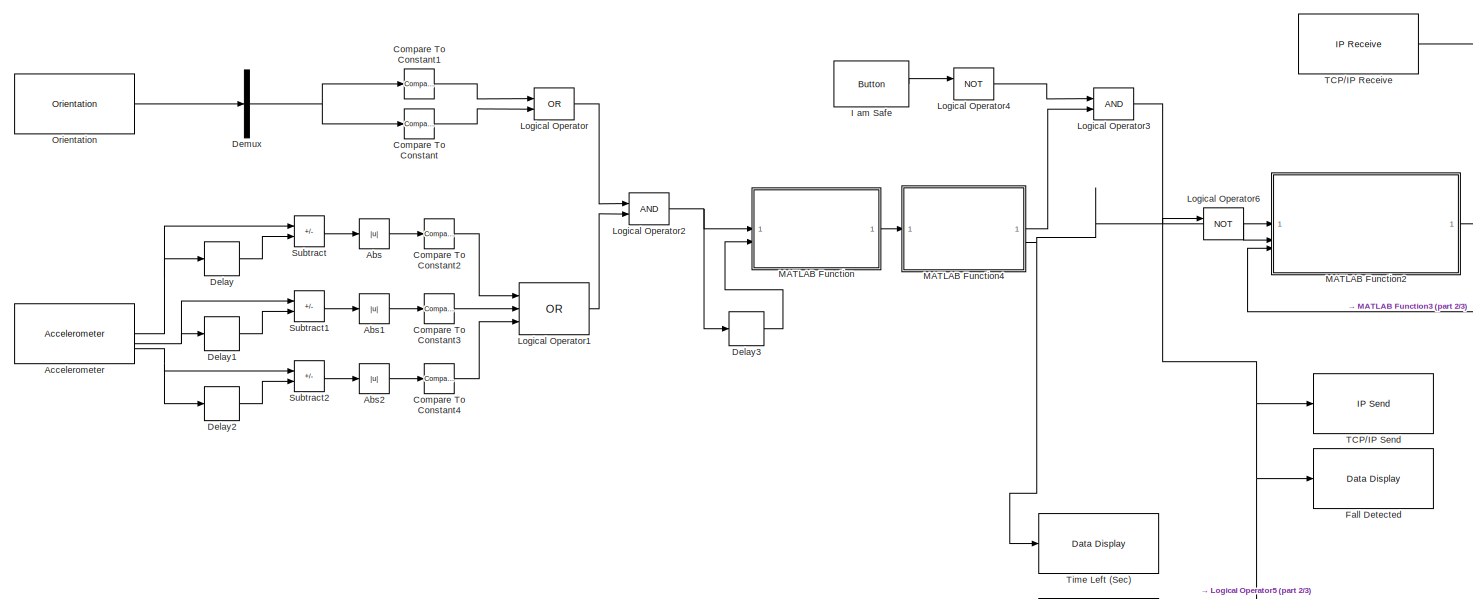
[diagram: root canvas - part 1/3, top left region]
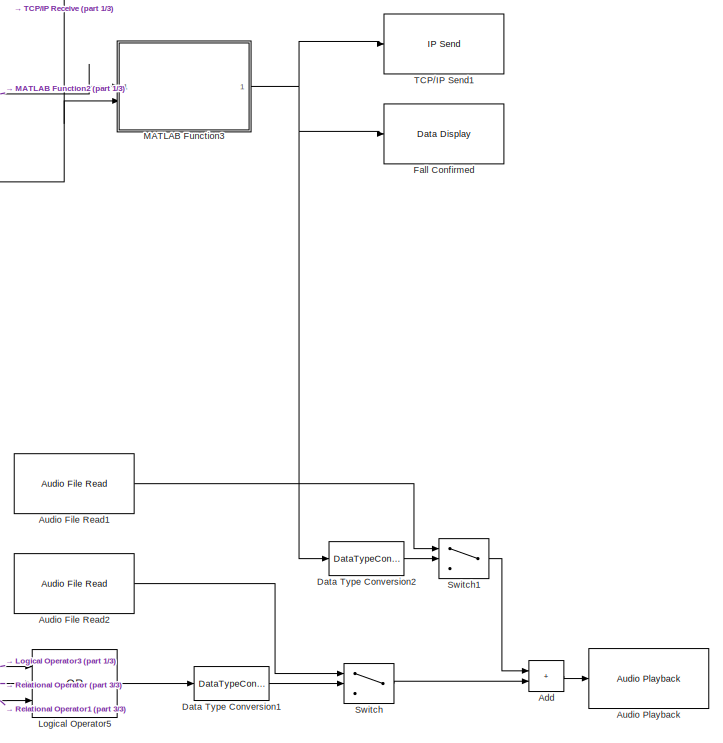
[diagram: root canvas - part 2/3, middle right region]
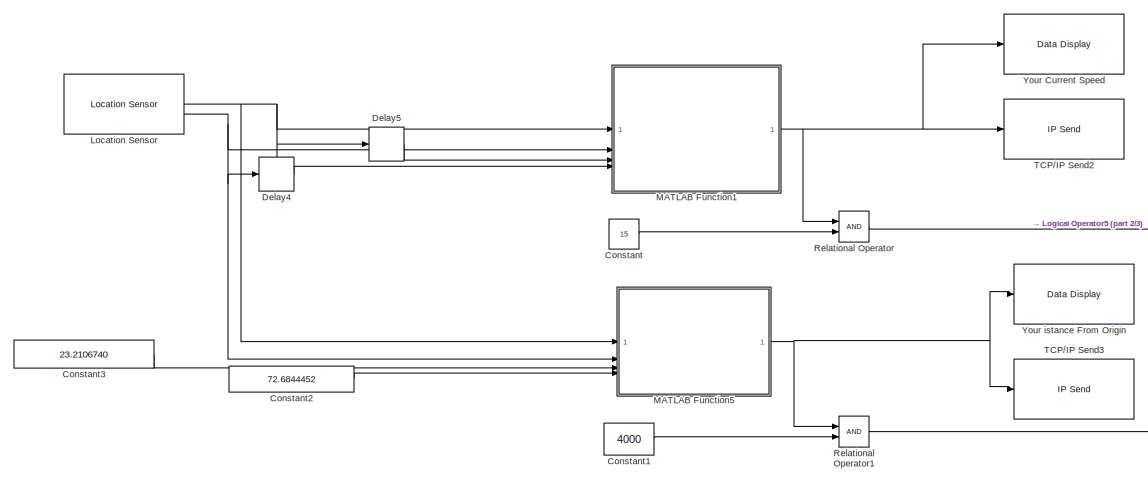
[diagram: root canvas - part 3/3, bottom left region]
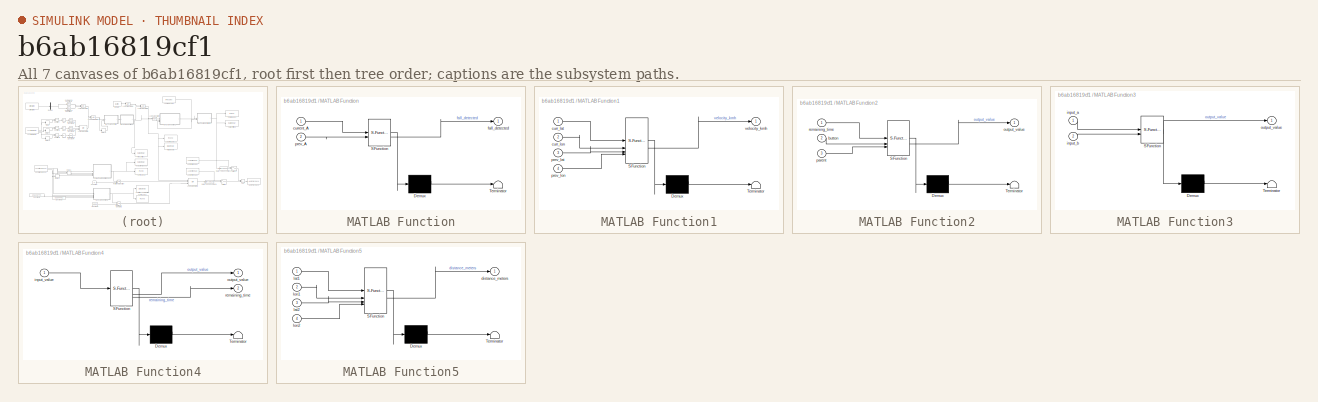
[diagram: thumbnail index - all 7 canvases of the model, root first then tree order]
MODEL slx_b6ab16819cf1
KIND model
CONFIG AbsTol = auto
CONFIG EnableMultiTasking = off
CONFIG FixedStep = auto
CONFIG MaxStep = auto
CONFIG MinStep = auto
CONFIG RelTol = 1e-3
CONFIG SampleTimeConstraint = Unconstrained
CONFIG SolverName = FixedStepAuto
CONFIG StartTime = 0.0
CONFIG StopTime = inf
BLOCK [Abs] Abs
  SaturateOnIntegerOverflow = off
BLOCK [Abs] Abs1
  SaturateOnIntegerOverflow = off
BLOCK [Abs] Abs2
  SaturateOnIntegerOverflow = off
BLOCK [Reference] Accelerometer  REF=androidsensorlib/Accelerometer
  SourceBlock = androidsensorlib/Accelerometer
  SourceType = codertarget.internal.androidAccelerometer
BLOCK [Sum] Add
  IconShape = rectangular
BLOCK [Reference] Audio File Read1  REF=androidaudiovideolib/Audio File Read
  SourceBlock = androidaudiovideolib/Audio File Read
  SourceType = codertarget.internal.androidAudioFileRead
BLOCK [Reference] Audio File Read2  REF=androidaudiovideolib/Audio File Read
  SourceBlock = androidaudiovideolib/Audio File Read
  SourceType = codertarget.internal.androidAudioFileRead
BLOCK [Reference] Audio Playback  REF=androidaudiovideolib/Audio Playback
  SourceBlock = androidaudiovideolib/Audio Playback
  SourceType = codertarget.internal.androidAudioPlayback
BLOCK [Reference] Compare To Constant  REF=simulink/Logic and Bit
Operations/Compare
To Constant
  SourceBlock = simulink/Logic and Bit\nOperations/Compare\nTo Constant
  SourceType = Compare To Constant
BLOCK [Reference] Compare To Constant1  REF=simulink/Logic and Bit
Operations/Compare
To Constant
  SourceBlock = simulink/Logic and Bit\nOperations/Compare\nTo Constant
  SourceType = Compare To Constant
BLOCK [Reference] Compare To Constant2  REF=simulink/Logic and Bit
Operations/Compare
To Constant
  SourceBlock = simulink/Logic and Bit\nOperations/Compare\nTo Constant
  SourceType = Compare To Constant
BLOCK [Reference] Compare To Constant3  REF=simulink/Logic and Bit
Operations/Compare
To Constant
  SourceBlock = simulink/Logic and Bit\nOperations/Compare\nTo Constant
  SourceType = Compare To Constant
BLOCK [Reference] Compare To Constant4  REF=simulink/Logic and Bit
Operations/Compare
To Constant
  SourceBlock = simulink/Logic and Bit\nOperations/Compare\nTo Constant
  SourceType = Compare To Constant
BLOCK [Constant] Constant
  Value = 15
BLOCK [Constant] Constant1
  Value = 4000
BLOCK [Constant] Constant2
  Value = 72.6844452
BLOCK [Constant] Constant3
  Value = 23.2106740
BLOCK [DataTypeConversion] Data Type Conversion1
  OutDataTypeStr = double
  RndMeth = Floor
  SaturateOnIntegerOverflow = off
BLOCK [DataTypeConversion] Data Type Conversion2
  OutDataTypeStr = double
  RndMeth = Floor
  SaturateOnIntegerOverflow = off
BLOCK [Delay] Delay
  DelayLength = 1
  InitialCondition = 0
  InputPortMap = u0
BLOCK [Delay] Delay1
  DelayLength = 1
  InitialCondition = 0
  InputPortMap = u0
BLOCK [Delay] Delay2
  DelayLength = 1
  InitialCondition = 0
  InputPortMap = u0
BLOCK [Delay] Delay3
  DelayLength = 1
  InitialCondition = 0
  InputPortMap = u0
BLOCK [Delay] Delay4
  DelayLength = 1
  InitialCondition = 0
  InputPortMap = u0
BLOCK [Delay] Delay5
  DelayLength = 1
  InitialCondition = 0
  InputPortMap = u0
BLOCK [Demux] Demux
  Outputs = 3
BLOCK [Reference] Fall Confirmed  REF=androiduilib/Data Display
  SourceBlock = androiduilib/Data Display
  SourceType = codertarget.internal.androidDataDisplay
BLOCK [Reference] Fall Detected  REF=androiduilib/Data Display
  SourceBlock = androiduilib/Data Display
  SourceType = codertarget.internal.androidDataDisplay
BLOCK [Reference] I am Safe  REF=androiduilib/Button
  SourceBlock = androiduilib/Button
  SourceType = codertarget.internal.androidButton
BLOCK [Reference] Location Sensor  REF=androidsensorlib/Location Sensor
  SourceBlock = androidsensorlib/Location Sensor
  SourceType = codertarget.internal.androidLocation
BLOCK [Logic] Logical Operator
  AllPortsSameDT = off
  IconShape = distinctive
  Operator = OR
  OutDataTypeStr = boolean
BLOCK [Logic] Logical Operator1
  AllPortsSameDT = off
  IconShape = distinctive
  Inputs = 3
  Operator = OR
  OutDataTypeStr = boolean
BLOCK [Logic] Logical Operator2
  AllPortsSameDT = off
  IconShape = distinctive
  OutDataTypeStr = boolean
BLOCK [Logic] Logical Operator3
  AllPortsSameDT = off
  IconShape = distinctive
  OutDataTypeStr = boolean
BLOCK [Logic] Logical Operator4
  AllPortsSameDT = off
  IconShape = distinctive
  Operator = NOT
  OutDataTypeStr = boolean
BLOCK [Logic] Logical Operator5
  AllPortsSameDT = off
  IconShape = distinctive
  Inputs = 3
  Operator = OR
  OutDataTypeStr = boolean
BLOCK [Logic] Logical Operator6
  AllPortsSameDT = off
  IconShape = distinctive
  Operator = NOT
  OutDataTypeStr = boolean
BLOCK [SubSystem] MATLAB Function
  ErrorFcn = Stateflow.Translate.translate
  PermitHierarchicalResolution = ExplicitOnly
  SFBlockType = MATLAB Function
  TreatAsAtomicUnit = on
BLOCK [Demux] MATLAB Function/ Demux 
  Outputs = 1
BLOCK [S-Function] MATLAB Function/ SFunction 
  EnableBusSupport = on
  FunctionName = sf_sfun
  PortCounts = [2 2]
  SFcnIsStateOwnerBlock = off
  SFunctionDeploymentMode = off
  Tag = Stateflow S-Function 2
BLOCK [Terminator] MATLAB Function/ Terminator 
BLOCK [Inport] MATLAB Function/current_A
BLOCK [Outport] MATLAB Function/fall_detected
BLOCK [Inport] MATLAB Function/prev_A
  Port = 2
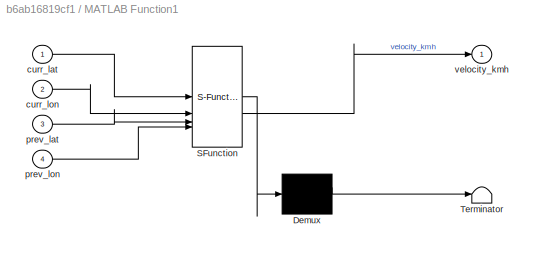
BLOCK [SubSystem] MATLAB Function1
  ErrorFcn = Stateflow.Translate.translate
  PermitHierarchicalResolution = ExplicitOnly
  SFBlockType = MATLAB Function
  TreatAsAtomicUnit = on
BLOCK [Demux] MATLAB Function1/ Demux 
  Outputs = 1
BLOCK [S-Function] MATLAB Function1/ SFunction 
  EnableBusSupport = on
  FunctionName = sf_sfun
  PortCounts = [4 2]
  SFcnIsStateOwnerBlock = off
  SFunctionDeploymentMode = off
  Tag = Stateflow S-Function 1
BLOCK [Terminator] MATLAB Function1/ Terminator 
BLOCK [Inport] MATLAB Function1/curr_lat
BLOCK [Inport] MATLAB Function1/curr_lon
  Port = 2
BLOCK [Inport] MATLAB Function1/prev_lat
  Port = 3
BLOCK [Inport] MATLAB Function1/prev_lon
  Port = 4
BLOCK [Outport] MATLAB Function1/velocity_kmh
BLOCK [SubSystem] MATLAB Function2
  ErrorFcn = Stateflow.Translate.translate
  PermitHierarchicalResolution = ExplicitOnly
  SFBlockType = MATLAB Function
  TreatAsAtomicUnit = on
BLOCK [Demux] MATLAB Function2/ Demux 
  Outputs = 1
BLOCK [S-Function] MATLAB Function2/ SFunction 
  EnableBusSupport = on
  FunctionName = sf_sfun
  PortCounts = [3 2]
  SFcnIsStateOwnerBlock = off
  SFunctionDeploymentMode = off
  Tag = Stateflow S-Function 3
BLOCK [Terminator] MATLAB Function2/ Terminator 
BLOCK [Inport] MATLAB Function2/button
  Port = 2
BLOCK [Outport] MATLAB Function2/output_value
BLOCK [Inport] MATLAB Function2/parent
  Port = 3
BLOCK [Inport] MATLAB Function2/remaining_time
BLOCK [SubSystem] MATLAB Function3
  ErrorFcn = Stateflow.Translate.translate
  PermitHierarchicalResolution = ExplicitOnly
  SFBlockType = MATLAB Function
  TreatAsAtomicUnit = on
BLOCK [Demux] MATLAB Function3/ Demux 
  Outputs = 1
BLOCK [S-Function] MATLAB Function3/ SFunction 
  EnableBusSupport = on
  FunctionName = sf_sfun
  PortCounts = [2 2]
  SFcnIsStateOwnerBlock = off
  SFunctionDeploymentMode = off
  Tag = Stateflow S-Function 4
BLOCK [Terminator] MATLAB Function3/ Terminator 
BLOCK [Inport] MATLAB Function3/input_a
BLOCK [Inport] MATLAB Function3/input_b
  Port = 2
BLOCK [Outport] MATLAB Function3/output_value
BLOCK [SubSystem] MATLAB Function4
  ErrorFcn = Stateflow.Translate.translate
  PermitHierarchicalResolution = ExplicitOnly
  SFBlockType = MATLAB Function
  TreatAsAtomicUnit = on
BLOCK [Demux] MATLAB Function4/ Demux 
  Outputs = 1
BLOCK [S-Function] MATLAB Function4/ SFunction 
  EnableBusSupport = on
  FunctionName = sf_sfun
  PortCounts = [1 3]
  SFcnIsStateOwnerBlock = off
  SFunctionDeploymentMode = off
  Tag = Stateflow S-Function 5
BLOCK [Terminator] MATLAB Function4/ Terminator 
BLOCK [Inport] MATLAB Function4/input_value
BLOCK [Outport] MATLAB Function4/output_value
BLOCK [Outport] MATLAB Function4/remaining_time
  Port = 2
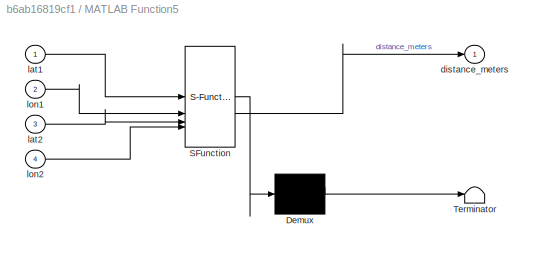
BLOCK [SubSystem] MATLAB Function5
  ErrorFcn = Stateflow.Translate.translate
  PermitHierarchicalResolution = ExplicitOnly
  SFBlockType = MATLAB Function
  TreatAsAtomicUnit = on
BLOCK [Demux] MATLAB Function5/ Demux 
  Outputs = 1
BLOCK [S-Function] MATLAB Function5/ SFunction 
  EnableBusSupport = on
  FunctionName = sf_sfun
  PortCounts = [4 2]
  SFcnIsStateOwnerBlock = off
  SFunctionDeploymentMode = off
  Tag = Stateflow S-Function 6
BLOCK [Terminator] MATLAB Function5/ Terminator 
BLOCK [Outport] MATLAB Function5/distance_meters
BLOCK [Inport] MATLAB Function5/lat1
BLOCK [Inport] MATLAB Function5/lat2
  Port = 3
BLOCK [Inport] MATLAB Function5/lon1
  Port = 2
BLOCK [Inport] MATLAB Function5/lon2
  Port = 4
BLOCK [Reference] Orientation  REF=androidsensorlib/Orientation
  SourceBlock = androidsensorlib/Orientation
  SourceType = codertarget.internal.androidOrientation
BLOCK [RelationalOperator] Relational Operator
  InputSameDT = off
  OutDataTypeStr = boolean
  RndMeth = Simplest
BLOCK [RelationalOperator] Relational Operator1
  InputSameDT = off
  OutDataTypeStr = boolean
  RndMeth = Simplest
BLOCK [Sum] Subtract
  IconShape = rectangular
  Inputs = +-
BLOCK [Sum] Subtract1
  IconShape = rectangular
  Inputs = +-
BLOCK [Sum] Subtract2
  IconShape = rectangular
  Inputs = +-
BLOCK [Switch] Switch
  Criteria = u2 > Threshold
  InputSameDT = off
  SaturateOnIntegerOverflow = off
BLOCK [Switch] Switch1
  Criteria = u2 > Threshold
  InputSameDT = off
  SaturateOnIntegerOverflow = off
BLOCK [Reference] TCP//IP Receive  REF=androidcommunicationlib/TCP//IP Receive
  SourceBlock = androidcommunicationlib/TCP//IP Receive
  SourceType = codertarget.internal.androidTCPReceive
BLOCK [Reference] TCP//IP Send  REF=androidcommunicationlib/TCP//IP Send
  SourceBlock = androidcommunicationlib/TCP//IP Send
  SourceType = codertarget.internal.androidTCPSend
BLOCK [Reference] TCP//IP Send1  REF=androidcommunicationlib/TCP//IP Send
  SourceBlock = androidcommunicationlib/TCP//IP Send
  SourceType = codertarget.internal.androidTCPSend
BLOCK [Reference] TCP//IP Send2  REF=androidcommunicationlib/TCP//IP Send
  SourceBlock = androidcommunicationlib/TCP//IP Send
  SourceType = codertarget.internal.androidTCPSend
BLOCK [Reference] TCP//IP Send3  REF=androidcommunicationlib/TCP//IP Send
  SourceBlock = androidcommunicationlib/TCP//IP Send
  SourceType = codertarget.internal.androidTCPSend
BLOCK [Reference] Time Left (Sec)  REF=androiduilib/Data Display
  SourceBlock = androiduilib/Data Display
  SourceType = codertarget.internal.androidDataDisplay
BLOCK [Reference] Your Current Speed  REF=androiduilib/Data Display
  SourceBlock = androiduilib/Data Display
  SourceType = codertarget.internal.androidDataDisplay
BLOCK [Reference] Your istance From Origin  REF=androiduilib/Data Display
  SourceBlock = androiduilib/Data Display
  SourceType = codertarget.internal.androidDataDisplay
LINE Abs1:1 -> Compare To Constant3:1
LINE Abs2:1 -> Compare To Constant4:1
LINE Abs:1 -> Compare To Constant2:1
NET Accelerometer:1 -> Delay:1, Subtract:1
NET Accelerometer:2 -> Delay1:1, Subtract1:1
NET Accelerometer:3 -> Delay2:1, Subtract2:1
LINE Add:1 -> Audio Playback:1
LINE Audio File Read1:1 -> Switch1:1
LINE Audio File Read2:1 -> Switch:1
LINE Compare To Constant1:1 -> Logical Operator:1
LINE Compare To Constant2:1 -> Logical Operator1:1
LINE Compare To Constant3:1 -> Logical Operator1:2
LINE Compare To Constant4:1 -> Logical Operator1:3
LINE Compare To Constant:1 -> Logical Operator:2
LINE Constant1:1 -> Relational Operator1:2
LINE Constant2:1 -> MATLAB Function5:4
LINE Constant3:1 -> MATLAB Function5:3
LINE Constant:1 -> Relational Operator:2
LINE Data Type Conversion1:1 -> Switch:2
LINE Data Type Conversion2:1 -> Switch1:2
LINE Delay1:1 -> Subtract1:2
LINE Delay2:1 -> Subtract2:2
LINE Delay3:1 -> MATLAB Function:2
LINE Delay4:1 -> MATLAB Function1:4
LINE Delay5:1 -> MATLAB Function1:3
LINE Delay:1 -> Subtract:2
NET Demux:2 -> Compare To Constant1:1, Compare To Constant:1
LINE I am Safe:1 -> Logical Operator4:1
NET Location Sensor:1 -> Delay5:1, MATLAB Function1:1, MATLAB Function5:1
NET Location Sensor:2 -> Delay4:1, MATLAB Function1:2, MATLAB Function5:2
LINE Logical Operator1:1 -> Logical Operator2:2
NET Logical Operator2:1 -> Delay3:1, MATLAB Function:1
NET Logical Operator3:1 -> Fall Detected:1, Logical Operator5:1, Logical Operator6:1, TCP//IP Send:1
LINE Logical Operator4:1 -> Logical Operator3:1
LINE Logical Operator5:1 -> Data Type Conversion1:1
LINE Logical Operator6:1 -> MATLAB Function2:2
LINE Logical Operator:1 -> Logical Operator2:1
NET MATLAB Function1:1 -> Relational Operator:1, TCP//IP Send2:1, Your Current Speed:1
LINE MATLAB Function2:1 -> MATLAB Function3:1
NET MATLAB Function3:1 -> Data Type Conversion2:1, Fall Confirmed:1, TCP//IP Send1:1
LINE MATLAB Function4:1 -> Logical Operator3:2
NET MATLAB Function4:2 -> MATLAB Function2:1, Time Left (Sec):1
NET MATLAB Function5:1 -> Relational Operator1:1, TCP//IP Send3:1, Your istance From Origin:1
LINE MATLAB Function:1 -> MATLAB Function4:1
LINE Orientation:1 -> Demux:1
LINE Relational Operator1:1 -> Logical Operator5:3
LINE Relational Operator:1 -> Logical Operator5:2
LINE Subtract1:1 -> Abs1:1
LINE Subtract2:1 -> Abs2:1
LINE Subtract:1 -> Abs:1
LINE Switch1:1 -> Add:1
LINE Switch:1 -> Add:2
NET TCP//IP Receive:1 -> MATLAB Function2:3, MATLAB Function3:2
note: NET lines group one-source signal fan-out (src -> all destinations, sorted); 1:1 wires keep LINE
CHART MATLAB Function1 states=1 transitions=1
  STATE_LABEL 'eML_blk_kernel()'
  STATE_LABEL 'SCRIPT:\nfunction velocity_kmh = calculate_speed_kmh(curr_lat, curr_lon, prev_lat, prev_lon)\n    % Radius of the Earth in kilometers\n    R = 6371.0;\n\n    % Convert latitude and longitude from degrees to radians\n    curr_lat = deg2rad(curr_lat);\n    curr_lon = deg2rad(curr_lon);\n    prev_lat = deg2rad(prev_lat);\n    prev_lon = deg2rad(prev_lon);\n\n    % Haversine formula to calculate distance\n    d =...<+296ch>'
CHART MATLAB Function states=1 transitions=1
  STATE_LABEL 'eML_blk_kernel()'
  STATE_LABEL 'SCRIPT:\nfunction fall_detected = detect_fall(current_A, prev_A)\n    % Check for a change in A (current A is true and prev A is false)\n\n    if current_A && ~prev_A\n        fallDetectedState = true;\n    else\n        fallDetectedState = false;\n    end\n    \n    fall_detected = fallDetectedState;\nend\n'
CHART MATLAB Function2 states=1 transitions=1
  STATE_LABEL 'eML_blk_kernel()'
  STATE_LABEL "SCRIPT:\nfunction output_value = custom_logic(remaining_time, button, parent)\n\n    persistent output_state;\n    \n    % Initialize output_state to false if it's not already defined.\n    if isempty(output_state)\n        output_state = false;\n    end\n    \n    % Check if parent is true, and if so, reset the output and return false.\n    if parent\n        output_state = false;\n        output_value = fals...<+422ch>"
CHART MATLAB Function3 states=1 transitions=1
  STATE_LABEL 'eML_blk_kernel()'
  STATE_LABEL "SCRIPT:\nfunction output_value = true_forever_when_a(input_a, input_b)\n    % Define a persistent variable to store the state\n    persistent is_output_true\n    is_output_true = false;\n    \n    % Initialize the state if it's not already initialized\n    if isempty(is_output_true)\n        is_output_true = false;\n    end\n    \n    % Update the state based on input\n    if input_a\n        is_output_true = ...<+149ch>"
CHART MATLAB Function4 states=1 transitions=1
  STATE_LABEL 'eML_blk_kernel()'
  STATE_LABEL 'SCRIPT:\nfunction [output_value, remaining_time] = true_for_5_seconds(input_value)\n    % Define a persistent variable to store the timestamp when input becomes true\n    persistent true_timestamp\n    \n    % Initialize the persistent variable if input becomes true\n    if input_value\n        true_timestamp = tic;  % Record the current time\n    end\n    \n    % Check if 5 seconds have passed since the in...<+294ch>'
CHART MATLAB Function5 states=1 transitions=1
  STATE_LABEL 'eML_blk_kernel()'
  STATE_LABEL 'SCRIPT:\nfunction distance_meters = calculate_distance(lat1, lon1, lat2, lon2)\n    % Radius of the Earth in meters\n    R = 6371000;  % Mean radius of the Earth in meters\n\n    % Convert latitude and longitude from degrees to radians\n    lat1 = deg2rad(lat1);\n    lon1 = deg2rad(lon1);\n    lat2 = deg2rad(lat2);\n    lon2 = deg2rad(lon2);\n\n    % Haversine formula to calculate distance\n    dlat = lat2 - ...<+203ch>'
CHART  states=0 transitions=0
CHART  states=0 transitions=0
CHART  states=0 transitions=0
CHART  states=0 transitions=0
CHART  states=0 transitions=0
CHART  states=0 transitions=0
